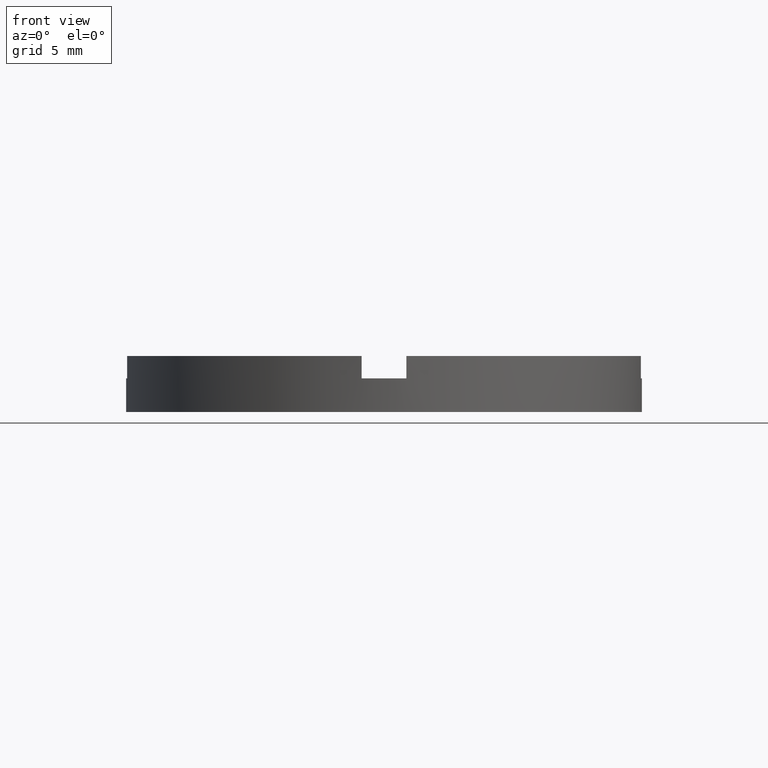
[diagram: clean part render]
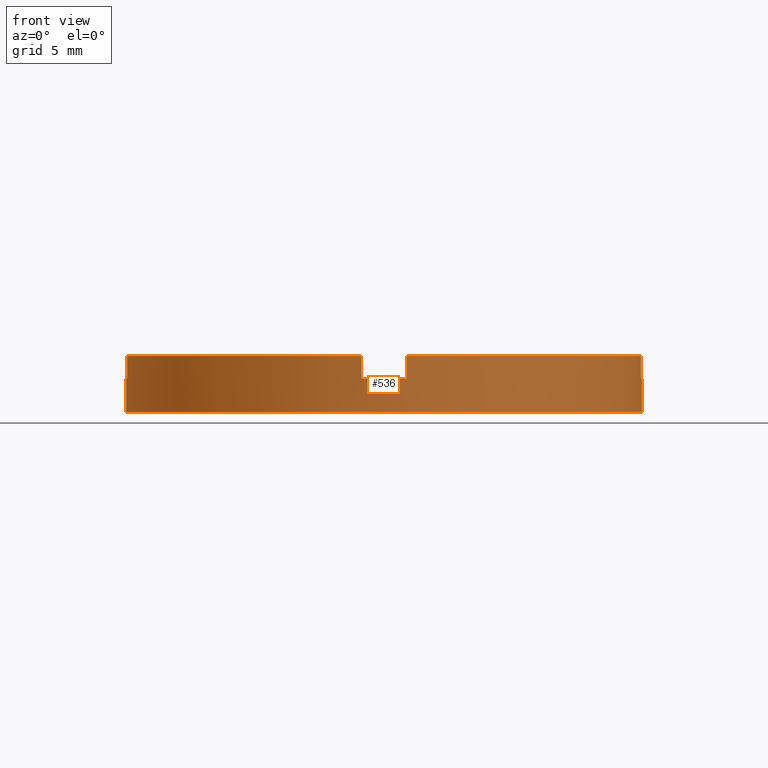
[diagram: same view with one face highlighted and labeled with its STEP entity id]
A machine part, front view. The second image highlights one B-rep face of the part: STEP entity #536.
In plain terms, the highlighted cylindrical surface (partial cylindrical patch) has radius 11.5 mm, axis along (-0, -0, -1).
Its self-contained STEP definition (entity closure, byte-faithful):
#5 = ORIENTED_EDGE ( 'NONE', *, *, #40, .T. ) ;
#8 = DIRECTION ( 'NONE',  ( -0.000000000000000000, -0.000000000000000000, -1.000000000000000000 ) ) ;
#23 = ORIENTED_EDGE ( 'NONE', *, *, #548, .F. ) ;
#24 = EDGE_LOOP ( 'NONE', ( #333, #23, #336, #603, #287, #46, #335, #559, #223, #51, #286, #5 ) ) ;
#40 = EDGE_CURVE ( 'NONE', #766, #277, #712, .T. ) ;
#42 = CARTESIAN_POINT ( 'NONE',  ( 0.000000000000000000, 0.000000000000000000, 1.500000000000000000 ) ) ;
#46 = ORIENTED_EDGE ( 'NONE', *, *, #348, .F. ) ;
#51 = ORIENTED_EDGE ( 'NONE', *, *, #364, .F. ) ;
#60 = DIRECTION ( 'NONE',  ( 1.000000000000000000, 0.000000000000000000, 0.000000000000000000 ) ) ;
#61 = CARTESIAN_POINT ( 'NONE',  ( 0.000000000000000000, 0.000000000000000000, 1.500000000000000000 ) ) ;
#66 = AXIS2_PLACEMENT_3D ( 'NONE', #203, #547, #60 ) ;
#90 = CARTESIAN_POINT ( 'NONE',  ( 0.000000000000000000, 0.000000000000000000, 2.500000000000000000 ) ) ;
#94 = DIRECTION ( 'NONE',  ( 1.000000000000000000, 0.000000000000000000, 0.000000000000000000 ) ) ;
#98 = AXIS2_PLACEMENT_3D ( 'NONE', #90, #173, #231 ) ;
#100 = DIRECTION ( 'NONE',  ( -0.000000000000000000, -0.000000000000000000, -1.000000000000000000 ) ) ;
#113 = DIRECTION ( 'NONE',  ( 0.000000000000000000, 0.000000000000000000, 1.000000000000000000 ) ) ;
#114 = CARTESIAN_POINT ( 'NONE',  ( 11.45643923738958669, -1.000000000000160094, 2.500000000000000000 ) ) ;
#119 = VECTOR ( 'NONE', #121, 1000.000000000000000 ) ;
#121 = DIRECTION ( 'NONE',  ( -0.000000000000000000, -0.000000000000000000, -1.000000000000000000 ) ) ;
#126 = CYLINDRICAL_SURFACE ( 'NONE', #593, 11.50000000000000000 ) ;
#135 = VECTOR ( 'NONE', #100, 1000.000000000000000 ) ;
#156 = LINE ( 'NONE', #553, #412 ) ;
#159 = EDGE_CURVE ( 'NONE', #501, #426, #698, .T. ) ;
#173 = DIRECTION ( 'NONE',  ( 0.000000000000000000, 0.000000000000000000, 1.000000000000000000 ) ) ;
#199 = DIRECTION ( 'NONE',  ( 1.000000000000000000, 0.000000000000000000, 0.000000000000000000 ) ) ;
#200 = DIRECTION ( 'NONE',  ( 1.000000000000000000, 0.000000000000000000, 0.000000000000000000 ) ) ;
#202 = CARTESIAN_POINT ( 'NONE',  ( -11.50000000000000000, 0.000000000000000000, 1.500000000000000000 ) ) ;
#203 = CARTESIAN_POINT ( 'NONE',  ( 0.000000000000000000, 0.000000000000000000, 2.500000000000000000 ) ) ;
#207 = DIRECTION ( 'NONE',  ( -0.000000000000000000, -0.000000000000000000, -1.000000000000000000 ) ) ;
#208 = CARTESIAN_POINT ( 'NONE',  ( -1.000000000000163647, -11.45643923738958669, 2.500000000000000000 ) ) ;
#215 = CARTESIAN_POINT ( 'NONE',  ( -11.50000000000000000, 0.000000000000000000, 0.000000000000000000 ) ) ;
#217 = VERTEX_POINT ( 'NONE', #208 ) ;
#218 = AXIS2_PLACEMENT_3D ( 'NONE', #42, #244, #615 ) ;
#223 = ORIENTED_EDGE ( 'NONE', *, *, #497, .T. ) ;
#231 = DIRECTION ( 'NONE',  ( 1.000000000000000000, 0.000000000000000000, 0.000000000000000000 ) ) ;
#234 = CARTESIAN_POINT ( 'NONE',  ( 0.000000000000000000, 0.000000000000000000, 0.000000000000000000 ) ) ;
#239 = CARTESIAN_POINT ( 'NONE',  ( 11.45643923738958669, -1.000000000000160094, 1.500000000000000000 ) ) ;
#244 = DIRECTION ( 'NONE',  ( -0.000000000000000000, 0.000000000000000000, 1.000000000000000000 ) ) ;
#258 = AXIS2_PLACEMENT_3D ( 'NONE', #661, #419, #200 ) ;
#270 = EDGE_CURVE ( 'NONE', #501, #524, #463, .T. ) ;
#277 = VERTEX_POINT ( 'NONE', #669 ) ;
#286 = ORIENTED_EDGE ( 'NONE', *, *, #761, .T. ) ;
#287 = ORIENTED_EDGE ( 'NONE', *, *, #159, .T. ) ;
#304 = VERTEX_POINT ( 'NONE', #239 ) ;
#311 = CARTESIAN_POINT ( 'NONE',  ( 0.000000000000000000, 0.000000000000000000, 2.500000000000000000 ) ) ;
#333 = ORIENTED_EDGE ( 'NONE', *, *, #730, .F. ) ;
#335 = ORIENTED_EDGE ( 'NONE', *, *, #608, .T. ) ;
#336 = ORIENTED_EDGE ( 'NONE', *, *, #607, .T. ) ;
#337 = AXIS2_PLACEMENT_3D ( 'NONE', #61, #113, #199 ) ;
#348 = EDGE_CURVE ( 'NONE', #685, #426, #402, .T. ) ;
#356 = CARTESIAN_POINT ( 'NONE',  ( 11.45643923738958669, -1.000000000000160094, 2.500000000000000000 ) ) ;
#364 = EDGE_CURVE ( 'NONE', #567, #495, #381, .T. ) ;
#381 = CIRCLE ( 'NONE', #337, 11.50000000000000000 ) ;
#390 = EDGE_CURVE ( 'NONE', #436, #217, #680, .T. ) ;
#393 = CARTESIAN_POINT ( 'NONE',  ( -11.45643923738959735, -1.000000000000021982, 1.500000000000000000 ) ) ;
#402 = CIRCLE ( 'NONE', #218, 11.50000000000000000 ) ;
#412 = VECTOR ( 'NONE', #739, 1000.000000000000000 ) ;
#419 = DIRECTION ( 'NONE',  ( 0.000000000000000000, 0.000000000000000000, 1.000000000000000000 ) ) ;
#420 = VERTEX_POINT ( 'NONE', #625 ) ;
#426 = VERTEX_POINT ( 'NONE', #634 ) ;
#436 = VERTEX_POINT ( 'NONE', #768 ) ;
#463 = CIRCLE ( 'NONE', #66, 11.50000000000000000 ) ;
#465 = CARTESIAN_POINT ( 'NONE',  ( 0.9999999999998363531, -11.45643923738961334, 2.500000000000000000 ) ) ;
#477 = VECTOR ( 'NONE', #207, 1000.000000000000000 ) ;
#495 = VERTEX_POINT ( 'NONE', #393 ) ;
#497 = EDGE_CURVE ( 'NONE', #436, #495, #666, .T. ) ;
#501 = VERTEX_POINT ( 'NONE', #610 ) ;
#516 = CARTESIAN_POINT ( 'NONE',  ( -1.000000000000163647, -11.45643923738958669, 1.500000000000000000 ) ) ;
#520 = CARTESIAN_POINT ( 'NONE',  ( -11.50000000000000000, 0.000000000000000000, 2.500000000000000000 ) ) ;
#524 = VERTEX_POINT ( 'NONE', #114 ) ;
#525 = DIRECTION ( 'NONE',  ( -0.000000000000000000, -0.000000000000000000, -1.000000000000000000 ) ) ;
#536 = ADVANCED_FACE ( 'NONE', ( #668 ), #126, .T. ) ;
#547 = DIRECTION ( 'NONE',  ( 0.000000000000000000, 0.000000000000000000, 1.000000000000000000 ) ) ;
#548 = EDGE_CURVE ( 'NONE', #304, #420, #691, .T. ) ;
#553 = CARTESIAN_POINT ( 'NONE',  ( -1.000000000000163647, -11.45643923738958669, 2.500000000000000000 ) ) ;
#559 = ORIENTED_EDGE ( 'NONE', *, *, #390, .F. ) ;
#561 = AXIS2_PLACEMENT_3D ( 'NONE', #234, #648, #94 ) ;
#567 = VERTEX_POINT ( 'NONE', #202 ) ;
#593 = AXIS2_PLACEMENT_3D ( 'NONE', #311, #8, #734 ) ;
#603 = ORIENTED_EDGE ( 'NONE', *, *, #270, .F. ) ;
#604 = CARTESIAN_POINT ( 'NONE',  ( -11.45643923738959735, -1.000000000000021982, 2.500000000000000000 ) ) ;
#607 = EDGE_CURVE ( 'NONE', #304, #524, #660, .T. ) ;
#608 = EDGE_CURVE ( 'NONE', #685, #217, #156, .T. ) ;
#610 = CARTESIAN_POINT ( 'NONE',  ( 0.9999999999998363531, -11.45643923738961334, 2.500000000000000000 ) ) ;
#615 = DIRECTION ( 'NONE',  ( 1.000000000000000000, 0.000000000000000000, 0.000000000000000000 ) ) ;
#625 = CARTESIAN_POINT ( 'NONE',  ( 11.50000000000000000, 1.408343819019456176E-15, 1.500000000000000000 ) ) ;
#627 = CARTESIAN_POINT ( 'NONE',  ( 11.50000000000000000, 1.408343819019456176E-15, 2.500000000000000000 ) ) ;
#634 = CARTESIAN_POINT ( 'NONE',  ( 0.9999999999998363531, -11.45643923738961334, 1.500000000000000000 ) ) ;
#648 = DIRECTION ( 'NONE',  ( 0.000000000000000000, 0.000000000000000000, 1.000000000000000000 ) ) ;
#657 = LINE ( 'NONE', #520, #119 ) ;
#660 = LINE ( 'NONE', #356, #688 ) ;
#661 = CARTESIAN_POINT ( 'NONE',  ( 0.000000000000000000, 0.000000000000000000, 1.500000000000000000 ) ) ;
#666 = LINE ( 'NONE', #604, #135 ) ;
#668 = FACE_OUTER_BOUND ( 'NONE', #24, .T. ) ;
#669 = CARTESIAN_POINT ( 'NONE',  ( 11.50000000000000000, 1.408343819019456176E-15, 0.000000000000000000 ) ) ;
#680 = CIRCLE ( 'NONE', #98, 11.50000000000000000 ) ;
#685 = VERTEX_POINT ( 'NONE', #516 ) ;
#688 = VECTOR ( 'NONE', #737, 1000.000000000000000 ) ;
#691 = CIRCLE ( 'NONE', #258, 11.50000000000000000 ) ;
#698 = LINE ( 'NONE', #465, #715 ) ;
#712 = CIRCLE ( 'NONE', #561, 11.50000000000000000 ) ;
#715 = VECTOR ( 'NONE', #525, 1000.000000000000000 ) ;
#730 = EDGE_CURVE ( 'NONE', #420, #277, #733, .T. ) ;
#733 = LINE ( 'NONE', #627, #477 ) ;
#734 = DIRECTION ( 'NONE',  ( -1.000000000000000000, 0.000000000000000000, 0.000000000000000000 ) ) ;
#737 = DIRECTION ( 'NONE',  ( 0.000000000000000000, 0.000000000000000000, 1.000000000000000000 ) ) ;
#739 = DIRECTION ( 'NONE',  ( 0.000000000000000000, 0.000000000000000000, 1.000000000000000000 ) ) ;
#761 = EDGE_CURVE ( 'NONE', #567, #766, #657, .T. ) ;
#766 = VERTEX_POINT ( 'NONE', #215 ) ;
#768 = CARTESIAN_POINT ( 'NONE',  ( -11.45643923738959735, -1.000000000000021982, 2.500000000000000000 ) ) ;